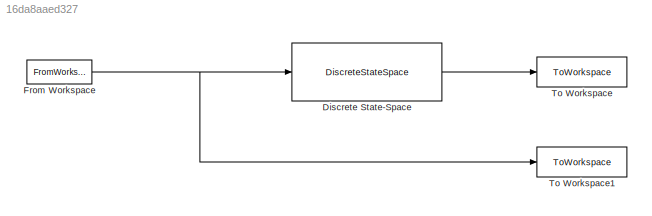
MODEL slx_16da8aaed327
KIND model
CONFIG AbsTol = auto
CONFIG EnableMultiTasking = off
CONFIG FixedStep = sampleTime
CONFIG MaxStep = auto
CONFIG MinStep = auto
CONFIG RelTol = 1e-3
CONFIG SampleTimeConstraint = Unconstrained
CONFIG Solver = FixedStepDiscrete
CONFIG SolverName = FixedStepDiscrete
CONFIG StartTime = 0.0
CONFIG StopTime = stop_time
BLOCK [DiscreteStateSpace] Discrete State-Space
  A = mpf.A
  B = mpf.B
  C = mpf.C
  D = mpf.D
  SampleTime = -1
BLOCK [FromWorkspace] From Workspace
  SampleTime = 0
  VariableName = exmpl
  ZeroCross = on
BLOCK [ToWorkspace] To Workspace
  FixptAsFi = on
  MaxDataPoints = inf
  Ports = [1]
  SampleTime = -1
  VariableName = diftempxmpl
BLOCK [ToWorkspace] To Workspace1
  FixptAsFi = on
  MaxDataPoints = inf
  Ports = [1]
  SampleTime = -1
  VariableName = freqxmpl
LINE Discrete State-Space:1 -> To Workspace:1
NET From Workspace:1 -> Discrete State-Space:1, To Workspace1:1
note: NET lines group one-source signal fan-out (src -> all destinations, sorted); 1:1 wires keep LINE
